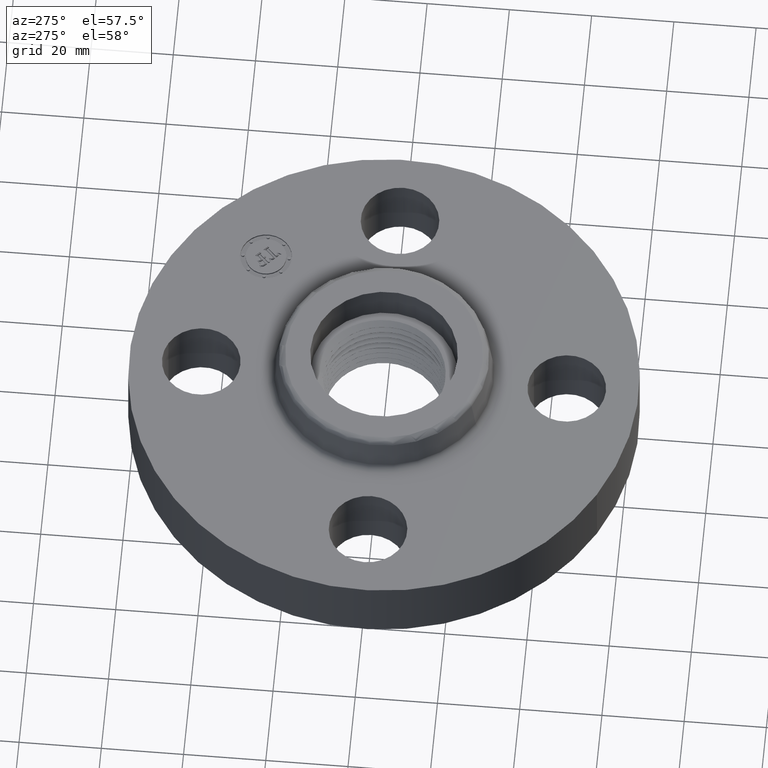
[diagram: clean part render]
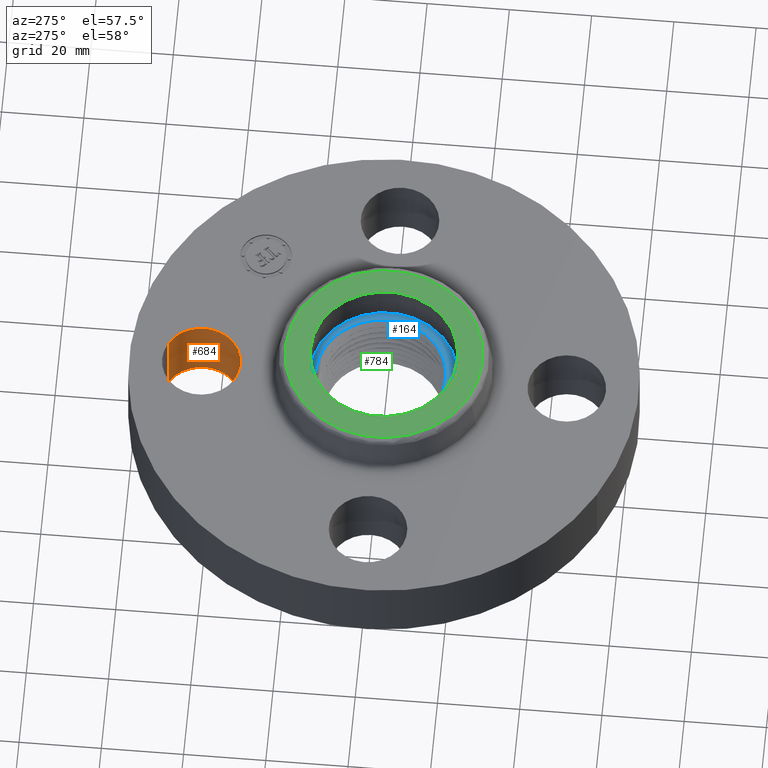
[diagram: same view with three faces highlighted in distinct colors, each labeled with its STEP entity id]
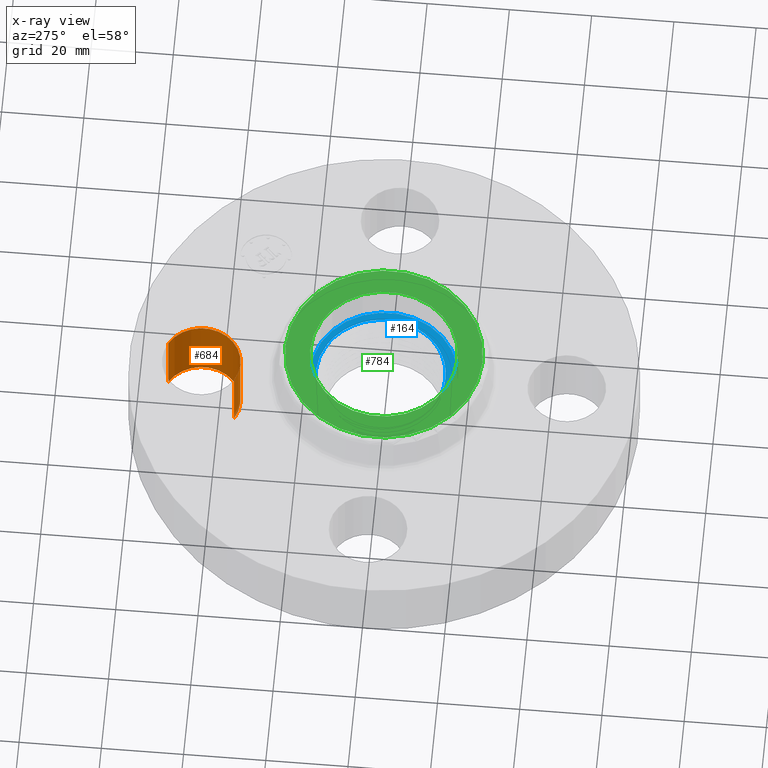
[diagram: x-ray of the same camera — body ghosted, the three highlighted faces saturated]
A machine part, auxiliary view with three faces highlighted in distinct colors.
The next image is the same camera in x-ray (body ghosted, the three faces saturated) — at least one of them is partly hidden behind the body in this view.
Their STEP definitions:

[orange] entity #684 — the highlighted cylindrical surface (partial cylindrical patch) has radius 9.525 mm, axis along (0, 0, -1).
#362=AXIS2_PLACEMENT_3D('Circle Axis2P3D',#360,#361,$) ;
#645=AXIS2_PLACEMENT_3D('Cylinder Axis2P3D',#642,#643,#644) ;
#675=AXIS2_PLACEMENT_3D('Circle Axis2P3D',#673,#674,$) ;
#355=CARTESIAN_POINT('Vertex',(-0.179784576977,1.4209065393,0.)) ;
#357=CARTESIAN_POINT('Vertex',(0.179784576977,2.07909346072,0.)) ;
#360=CARTESIAN_POINT('Axis2P3D Location',(-3.1470888887E-016,1.75000000001,0.)) ;
#642=CARTESIAN_POINT('Axis2P3D Location',(-3.21469784777E-016,1.75000000001,0.686062992129)) ;
#647=CARTESIAN_POINT('Line Origine',(-0.179784576977,1.4209065393,0.345000000001)) ;
#651=CARTESIAN_POINT('Vertex',(-0.179784576977,1.4209065393,0.690000000003)) ;
#654=CARTESIAN_POINT('Line Origine',(0.179784576977,2.07909346072,0.345000000001)) ;
#658=CARTESIAN_POINT('Vertex',(0.179784576977,2.07909346072,0.690000000003)) ;
#673=CARTESIAN_POINT('Axis2P3D Location',(-3.21469784777E-016,1.75000000001,0.690000000003)) ;
#361=DIRECTION('Axis2P3D Direction',(0.,0.,-0.0393700787402)) ;
#643=DIRECTION('Axis2P3D Direction',(0.,0.,-0.0393700787402)) ;
#644=DIRECTION('Axis2P3D XDirection',(0.0188750212049,0.0345504945626,0.)) ;
#648=DIRECTION('Vector Direction',(0.,0.,-0.0393700787402)) ;
#655=DIRECTION('Vector Direction',(0.,0.,-0.0393700787402)) ;
#674=DIRECTION('Axis2P3D Direction',(0.,0.,-0.0393700787402)) ;
#649=VECTOR('Line Direction',#648,0.0393700787402) ;
#656=VECTOR('Line Direction',#655,0.0393700787402) ;
#679=ORIENTED_EDGE('',*,*,#660,.F.) ;
#680=ORIENTED_EDGE('',*,*,#364,.T.) ;
#681=ORIENTED_EDGE('',*,*,#653,.T.) ;
#682=ORIENTED_EDGE('',*,*,#677,.F.) ;
#684=ADVANCED_FACE('PartBody',(#683),#646,.F.) ;
#363=CIRCLE('generated circle',#362,0.375000000001) ;
#676=CIRCLE('generated circle',#675,0.375000000001) ;
#646=CYLINDRICAL_SURFACE('generated cylinder',#645,0.375000000001) ;
#364=EDGE_CURVE('',#358,#356,#363,.T.) ;
#653=EDGE_CURVE('',#356,#652,#650,.F.) ;
#660=EDGE_CURVE('',#358,#659,#657,.F.) ;
#677=EDGE_CURVE('',#659,#652,#676,.T.) ;
#678=EDGE_LOOP('',(#679,#680,#681,#682)) ;
#683=FACE_OUTER_BOUND('',#678,.T.) ;
#650=LINE('Line',#647,#649) ;
#657=LINE('Line',#654,#656) ;
#356=VERTEX_POINT('',#355) ;
#358=VERTEX_POINT('',#357) ;
#652=VERTEX_POINT('',#651) ;
#659=VERTEX_POINT('',#658) ;

[blue] entity #164 — the highlighted planar face has unit normal (0, 0, -1).
#38=AXIS2_PLACEMENT_3D('Plane Axis2P3D',#35,#36,#37) ;
#42=AXIS2_PLACEMENT_3D('Circle Axis2P3D',#40,#41,$) ;
#51=AXIS2_PLACEMENT_3D('Circle Axis2P3D',#49,#50,$) ;
#60=AXIS2_PLACEMENT_3D('Circle Axis2P3D',#58,#59,$) ;
#35=CARTESIAN_POINT('Axis2P3D Location',(-9.35384753031E-017,1.08399728389E-016,0.690000000003)) ;
#40=CARTESIAN_POINT('Axis2P3D Location',(0.,0.,0.690000000003)) ;
#44=CARTESIAN_POINT('Vertex',(-0.337995004717,0.618695706135,0.690000000003)) ;
#46=CARTESIAN_POINT('Vertex',(0.337995004717,-0.618695706135,0.690000000003)) ;
#49=CARTESIAN_POINT('Axis2P3D Location',(0.,0.,0.690000000003)) ;
#58=CARTESIAN_POINT('Axis2P3D Location',(1.1626745061E-016,-8.39223703654E-017,0.690000000003)) ;
#62=CARTESIAN_POINT('Vertex',(-0.00903884609947,-0.585713888073,0.689999415533)) ;
#64=CARTESIAN_POINT('Vertex',(-0.0792564904463,-0.580397197545,0.690000474656)) ;
#68=CARTESIAN_POINT('Control Point',(-0.308881525613,0.565408058352,0.690000000003)) ;
#69=CARTESIAN_POINT('Control Point',(-0.362601661085,0.533482563889,0.690000000003)) ;
#70=CARTESIAN_POINT('Control Point',(-0.412332961401,0.495108381291,0.690000000003)) ;
#71=CARTESIAN_POINT('Control Point',(-0.457019813886,0.450936560402,0.690000000003)) ;
#72=CARTESIAN_POINT('Control Point',(-0.534552436862,0.352807995232,0.690000000003)) ;
#73=CARTESIAN_POINT('Control Point',(-0.585894395482,0.239404108221,0.690000000003)) ;
#74=CARTESIAN_POINT('Control Point',(-0.604402020365,0.179929873806,0.690000000003)) ;
#75=CARTESIAN_POINT('Control Point',(-0.622692133915,0.078268757081,0.690000000003)) ;
#76=CARTESIAN_POINT('Control Point',(-0.619930746767,-0.0241839647163,0.690000000003)) ;
#77=CARTESIAN_POINT('Control Point',(-0.615444029859,-0.0649180109207,0.690000000003)) ;
#78=CARTESIAN_POINT('Control Point',(-0.595887484214,-0.165213105118,0.690000000003)) ;
#79=CARTESIAN_POINT('Control Point',(-0.556165804377,-0.259391504583,0.690000000003)) ;
#80=CARTESIAN_POINT('Control Point',(-0.525441177443,-0.312479629231,0.690000000003)) ;
#81=CARTESIAN_POINT('Control Point',(-0.451554924682,-0.409625458618,0.690000000003)) ;
#82=CARTESIAN_POINT('Control Point',(-0.356455934239,-0.485110493237,0.690000000003)) ;
#83=CARTESIAN_POINT('Control Point',(-0.304481334479,-0.516569411126,0.690000000003)) ;
#84=CARTESIAN_POINT('Control Point',(-0.227946825261,-0.550511207653,0.690000000003)) ;
#85=CARTESIAN_POINT('Control Point',(-0.147503298486,-0.570436979518,0.690000000003)) ;
#86=CARTESIAN_POINT('Control Point',(-0.124888802672,-0.574876312477,0.690000000003)) ;
#87=CARTESIAN_POINT('Control Point',(-0.102115196043,-0.578197989621,0.690000000003)) ;
#88=CARTESIAN_POINT('Control Point',(-0.0792563755241,-0.580396480759,0.690000000003)) ;
#89=CARTESIAN_POINT('Vertex',(-0.308881525613,0.565408058352,0.690000000003)) ;
#93=CARTESIAN_POINT('Control Point',(-0.0512959802389,0.65210239967,0.690000000003)) ;
#94=CARTESIAN_POINT('Control Point',(-0.105898427023,0.645840652268,0.690000000003)) ;
#95=CARTESIAN_POINT('Control Point',(-0.159745804391,0.633850960207,0.690000000003)) ;
#96=CARTESIAN_POINT('Control Point',(-0.212043249286,0.616236631873,0.690000000003)) ;
#97=CARTESIAN_POINT('Control Point',(-0.261982537988,0.59327979314,0.690000000003)) ;
#98=CARTESIAN_POINT('Control Point',(-0.308881525613,0.565408058352,0.690000000003)) ;
#99=CARTESIAN_POINT('Vertex',(-0.0512959802389,0.65210239967,0.690000000003)) ;
#103=CARTESIAN_POINT('Control Point',(-0.0512959802389,0.65210239967,0.690000000003)) ;
#104=CARTESIAN_POINT('Control Point',(-0.0410397257377,0.652576903906,0.690000000003)) ;
#105=CARTESIAN_POINT('Control Point',(-0.0307772236397,0.652849906344,0.690000000003)) ;
#106=CARTESIAN_POINT('Control Point',(-0.0205067999394,0.652921221913,0.690000000003)) ;
#107=CARTESIAN_POINT('Control Point',(-0.0102476236083,0.652790791047,0.690000000003)) ;
#108=CARTESIAN_POINT('Control Point',(2.00076074522E-006,0.652458980637,0.690000000003)) ;
#109=CARTESIAN_POINT('Vertex',(2.00076074522E-006,0.652458980637,0.690000000003)) ;
#113=CARTESIAN_POINT('Control Point',(2.00076074427E-006,0.652458980637,0.690000000003)) ;
#114=CARTESIAN_POINT('Control Point',(0.0628534937118,0.650424293482,0.690000000003)) ;
#115=CARTESIAN_POINT('Control Point',(0.125345973345,0.640817247063,0.690000000003)) ;
#116=CARTESIAN_POINT('Control Point',(0.186249565489,0.623692524352,0.690000000003)) ;
#117=CARTESIAN_POINT('Control Point',(0.30245857733,0.575137336965,0.690000000003)) ;
#118=CARTESIAN_POINT('Control Point',(0.403264738408,0.500460303474,0.690000000003)) ;
#119=CARTESIAN_POINT('Control Point',(0.448767336294,0.457207654648,0.690000000003)) ;
#120=CARTESIAN_POINT('Control Point',(0.514896518787,0.376761459062,0.690000000003)) ;
#121=CARTESIAN_POINT('Control Point',(0.563077132419,0.285272504242,0.690000000003)) ;
#122=CARTESIAN_POINT('Control Point',(0.579279876234,0.247234519701,0.690000000003)) ;
#123=CARTESIAN_POINT('Control Point',(0.611763000836,0.149389252008,0.690000000003)) ;
#124=CARTESIAN_POINT('Control Point',(0.623693371598,0.046892345436,0.690000000003)) ;
#125=CARTESIAN_POINT('Control Point',(0.623171773383,-0.015043293304,0.690000000003)) ;
#126=CARTESIAN_POINT('Control Point',(0.606849841822,-0.137226605601,0.690000000003)) ;
#127=CARTESIAN_POINT('Control Point',(0.561333286395,-0.251206288536,0.690000000003)) ;
#128=CARTESIAN_POINT('Control Point',(0.531608471066,-0.304952545835,0.690000000003)) ;
#129=CARTESIAN_POINT('Control Point',(0.470406462863,-0.388773018064,0.690000000003)) ;
#130=CARTESIAN_POINT('Control Point',(0.393520156914,-0.457345341098,0.690000000003)) ;
#131=CARTESIAN_POINT('Control Point',(0.359561086754,-0.482648624325,0.690000000003)) ;
#132=CARTESIAN_POINT('Control Point',(0.323607110985,-0.504806207366,0.690000000003)) ;
#133=CARTESIAN_POINT('Control Point',(0.286055212897,-0.523627480654,0.690000000003)) ;
#134=CARTESIAN_POINT('Vertex',(0.286055212897,-0.523627480654,0.690000000003)) ;
#138=CARTESIAN_POINT('Control Point',(0.286055212897,-0.523627480654,0.690000000003)) ;
#139=CARTESIAN_POINT('Control Point',(0.232915352604,-0.550261549207,0.690000000003)) ;
#140=CARTESIAN_POINT('Control Point',(0.176575541684,-0.570214549079,0.690000000003)) ;
#141=CARTESIAN_POINT('Control Point',(0.118123377626,-0.582957588668,0.690000000003)) ;
#142=CARTESIAN_POINT('Control Point',(0.0588576173872,-0.588229935769,0.690000000003)) ;
#143=CARTESIAN_POINT('Control Point',(-3.89521526791E-006,-0.586108516025,0.690000000003)) ;
#144=CARTESIAN_POINT('Vertex',(-3.89521526789E-006,-0.586108516025,0.690000000003)) ;
#148=CARTESIAN_POINT('Control Point',(-3.89521526662E-006,-0.586108516025,0.690000000003)) ;
#149=CARTESIAN_POINT('Control Point',(-0.00181171219289,-0.586043360735,0.690000000003)) ;
#150=CARTESIAN_POINT('Control Point',(-0.0036191479082,-0.585971230947,0.690000000003)) ;
#151=CARTESIAN_POINT('Control Point',(-0.00542620841944,-0.585892126807,0.690000000003)) ;
#152=CARTESIAN_POINT('Control Point',(-0.00723277230554,-0.585806054402,0.690000000003)) ;
#153=CARTESIAN_POINT('Control Point',(-0.00903884570786,-0.585713014576,0.690000000003)) ;
#36=DIRECTION('Axis2P3D Direction',(0.,0.,-0.0393700787402)) ;
#37=DIRECTION('Axis2P3D XDirection',(0.,0.0393700787402,0.)) ;
#41=DIRECTION('Axis2P3D Direction',(0.,0.,-0.0393700787402)) ;
#50=DIRECTION('Axis2P3D Direction',(0.,0.,-0.0393700787402)) ;
#59=DIRECTION('Axis2P3D Direction',(0.,0.,-0.0393700787402)) ;
#55=ORIENTED_EDGE('',*,*,#48,.T.) ;
#56=ORIENTED_EDGE('',*,*,#53,.T.) ;
#156=ORIENTED_EDGE('',*,*,#66,.T.) ;
#157=ORIENTED_EDGE('',*,*,#91,.F.) ;
#158=ORIENTED_EDGE('',*,*,#101,.F.) ;
#159=ORIENTED_EDGE('',*,*,#111,.T.) ;
#160=ORIENTED_EDGE('',*,*,#136,.T.) ;
#161=ORIENTED_EDGE('',*,*,#146,.T.) ;
#162=ORIENTED_EDGE('',*,*,#154,.T.) ;
#163=FACE_BOUND('',#155,.T.) ;
#164=ADVANCED_FACE('PartBody',(#57,#163),#39,.F.) ;
#67=B_SPLINE_CURVE_WITH_KNOTS('',5,(#68,#69,#70,#71,#72,#73,#74,#75,#76,#77,#78,#79,#80,#81,#82,#83,#84,#85,#86,#87,#88),.UNSPECIFIED.,.F.,.U.,(6,3,3,3,3,3,6),(0.,11.0214776747,22.0480476787,29.3976764678,40.4227917572,51.4572858933,55.7110716161),.UNSPECIFIED.) ;
#92=B_SPLINE_CURVE_WITH_KNOTS('',5,(#93,#94,#95,#96,#97,#98),.UNSPECIFIED.,.F.,.U.,(6,6),(0.,9.62201864312),.UNSPECIFIED.) ;
#102=B_SPLINE_CURVE_WITH_KNOTS('',5,(#103,#104,#105,#106,#107,#108),.UNSPECIFIED.,.F.,.U.,(6,6),(0.,1.79745176334),.UNSPECIFIED.) ;
#112=B_SPLINE_CURVE_WITH_KNOTS('',5,(#113,#114,#115,#116,#117,#118,#119,#120,#121,#122,#123,#124,#125,#126,#127,#128,#129,#130,#131,#132,#133),.UNSPECIFIED.,.F.,.U.,(6,3,3,3,3,3,6),(0.,11.0221138615,22.0446917619,29.3889035813,40.4010975608,51.4163930043,59.1056926573),.UNSPECIFIED.) ;
#137=B_SPLINE_CURVE_WITH_KNOTS('',5,(#138,#139,#140,#141,#142,#143),.UNSPECIFIED.,.F.,.U.,(6,6),(0.,10.8811625984),.UNSPECIFIED.) ;
#147=B_SPLINE_CURVE_WITH_KNOTS('',5,(#148,#149,#150,#151,#152,#153),.UNSPECIFIED.,.F.,.U.,(6,6),(0.,0.334193764547),.UNSPECIFIED.) ;
#43=CIRCLE('generated circle',#42,0.705000000003) ;
#52=CIRCLE('generated circle',#51,0.705000000003) ;
#61=CIRCLE('generated circle',#60,0.585783646766) ;
#48=EDGE_CURVE('',#45,#47,#43,.F.) ;
#53=EDGE_CURVE('',#47,#45,#52,.F.) ;
#66=EDGE_CURVE('',#63,#65,#61,.T.) ;
#91=EDGE_CURVE('',#90,#65,#67,.T.) ;
#101=EDGE_CURVE('',#100,#90,#92,.T.) ;
#111=EDGE_CURVE('',#100,#110,#102,.T.) ;
#136=EDGE_CURVE('',#110,#135,#112,.T.) ;
#146=EDGE_CURVE('',#135,#145,#137,.T.) ;
#154=EDGE_CURVE('',#145,#63,#147,.T.) ;
#54=EDGE_LOOP('',(#55,#56)) ;
#155=EDGE_LOOP('',(#156,#157,#158,#159,#160,#161,#162)) ;
#57=FACE_OUTER_BOUND('',#54,.T.) ;
#39=PLANE('',#38) ;
#45=VERTEX_POINT('',#44) ;
#47=VERTEX_POINT('',#46) ;
#63=VERTEX_POINT('',#62) ;
#65=VERTEX_POINT('',#64) ;
#90=VERTEX_POINT('',#89) ;
#100=VERTEX_POINT('',#99) ;
#110=VERTEX_POINT('',#109) ;
#135=VERTEX_POINT('',#134) ;
#145=VERTEX_POINT('',#144) ;

[green] entity #784 — the highlighted planar face has unit normal (0, 0, -1).
#377=AXIS2_PLACEMENT_3D('Circle Axis2P3D',#375,#376,$) ;
#403=AXIS2_PLACEMENT_3D('Circle Axis2P3D',#401,#402,$) ;
#613=AXIS2_PLACEMENT_3D('Circle Axis2P3D',#611,#612,$) ;
#632=AXIS2_PLACEMENT_3D('Circle Axis2P3D',#630,#631,$) ;
#774=AXIS2_PLACEMENT_3D('Plane Axis2P3D',#771,#772,#773) ;
#375=CARTESIAN_POINT('Axis2P3D Location',(0.,0.,1.06)) ;
#379=CARTESIAN_POINT('Vertex',(0.337995004717,-0.618695706135,1.06)) ;
#381=CARTESIAN_POINT('Vertex',(-0.337995004717,0.618695706135,1.06)) ;
#401=CARTESIAN_POINT('Axis2P3D Location',(0.,0.,1.06)) ;
#608=CARTESIAN_POINT('Vertex',(0.452775730017,0.828800414486,1.06)) ;
#611=CARTESIAN_POINT('Axis2P3D Location',(0.,0.,1.06)) ;
#615=CARTESIAN_POINT('Vertex',(-0.452775730017,-0.828800414486,1.06)) ;
#630=CARTESIAN_POINT('Axis2P3D Location',(0.,0.,1.06)) ;
#771=CARTESIAN_POINT('Axis2P3D Location',(0.,0.944413039271,1.06)) ;
#376=DIRECTION('Axis2P3D Direction',(0.,0.,0.0393700787402)) ;
#402=DIRECTION('Axis2P3D Direction',(0.,0.,0.0393700787402)) ;
#612=DIRECTION('Axis2P3D Direction',(0.,0.,-0.0393700787402)) ;
#631=DIRECTION('Axis2P3D Direction',(0.,0.,-0.0393700787402)) ;
#772=DIRECTION('Axis2P3D Direction',(0.,0.,-0.0393700787402)) ;
#773=DIRECTION('Axis2P3D XDirection',(0.0393700787402,0.,0.)) ;
#777=ORIENTED_EDGE('',*,*,#617,.F.) ;
#778=ORIENTED_EDGE('',*,*,#634,.F.) ;
#781=ORIENTED_EDGE('',*,*,#405,.T.) ;
#782=ORIENTED_EDGE('',*,*,#383,.T.) ;
#783=FACE_BOUND('',#780,.T.) ;
#784=ADVANCED_FACE('PartBody',(#779,#783),#775,.F.) ;
#378=CIRCLE('generated circle',#377,0.705000000003) ;
#404=CIRCLE('generated circle',#403,0.705000000003) ;
#614=CIRCLE('generated circle',#613,0.944413039271) ;
#633=CIRCLE('generated circle',#632,0.944413039271) ;
#383=EDGE_CURVE('',#380,#382,#378,.F.) ;
#405=EDGE_CURVE('',#382,#380,#404,.F.) ;
#617=EDGE_CURVE('',#609,#616,#614,.T.) ;
#634=EDGE_CURVE('',#616,#609,#633,.T.) ;
#776=EDGE_LOOP('',(#777,#778)) ;
#780=EDGE_LOOP('',(#781,#782)) ;
#779=FACE_OUTER_BOUND('',#776,.T.) ;
#775=PLANE('',#774) ;
#380=VERTEX_POINT('',#379) ;
#382=VERTEX_POINT('',#381) ;
#609=VERTEX_POINT('',#608) ;
#616=VERTEX_POINT('',#615) ;